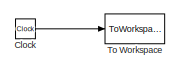
[diagram: root canvas - part 1/2, top left region]
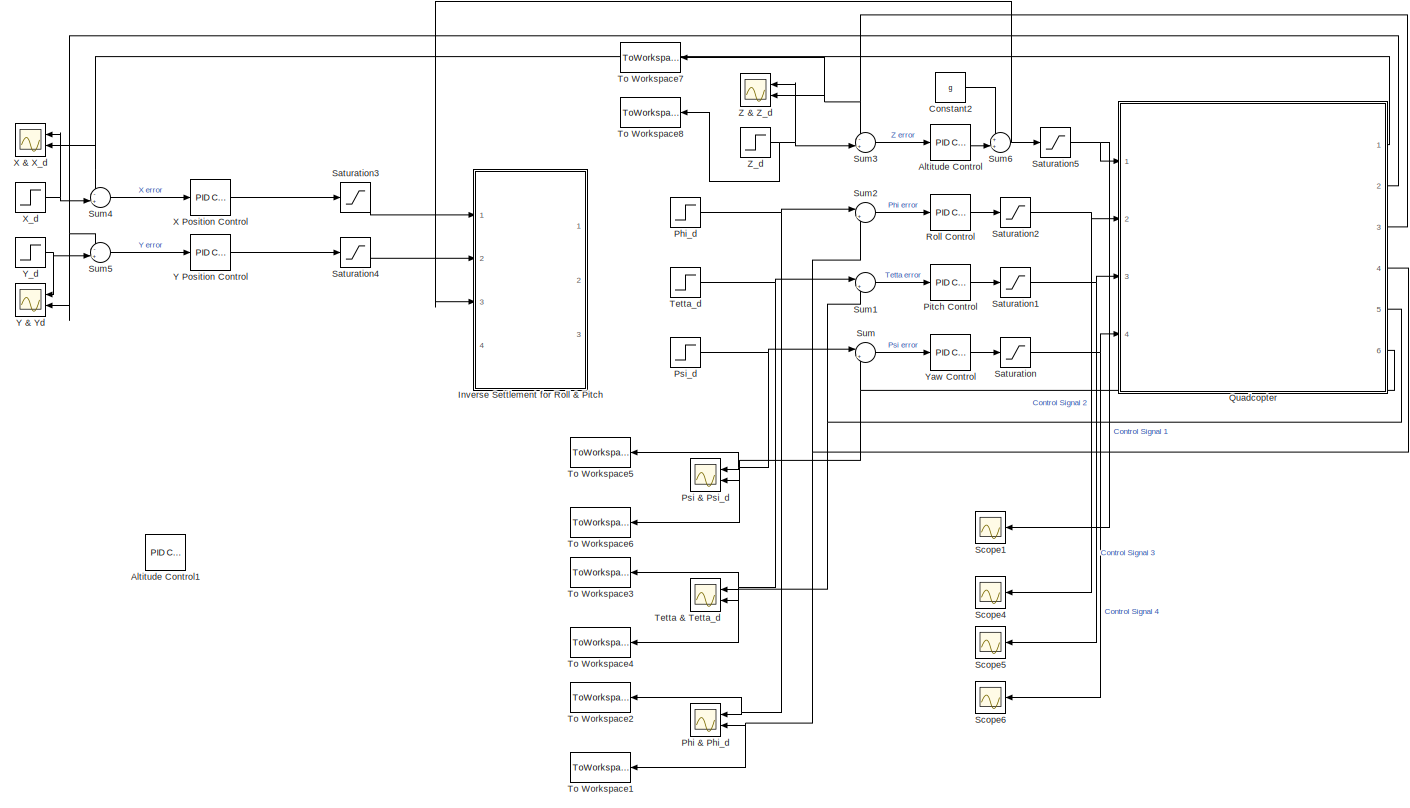
[diagram: root canvas - part 2/2, most of the canvas]
MODEL slx_0c0a3002c4bc
KIND model
CONFIG AbsTol = auto
CONFIG EnableMultiTasking = off
CONFIG FixedStep = auto
CONFIG MaxStep = auto
CONFIG MinStep = auto
CONFIG RelTol = 1e-3
CONFIG SampleTimeConstraint = Unconstrained
CONFIG Solver = ode15s
CONFIG SolverName = ode15s
CONFIG StartTime = 0.0
CONFIG StopTime = Final_Time
BLOCK [Reference] Altitude Control  REF=simulink/Continuous/PID Controller
  Ports = [1, 1]
  SourceBlock = simulink/Continuous/PID Controller
  SourceProductBaseCode = SL
  SourceProductName = Simulink
  SourceType = PID 1dof
BLOCK [Reference] Altitude Control1  REF=simulink/Continuous/PID Controller
  Ports = [1, 1]
  SourceBlock = simulink/Continuous/PID Controller
  SourceProductBaseCode = SL
  SourceProductName = Simulink
  SourceType = PID 1dof
BLOCK [Clock] Clock
BLOCK [Constant] Constant2
  Value = g
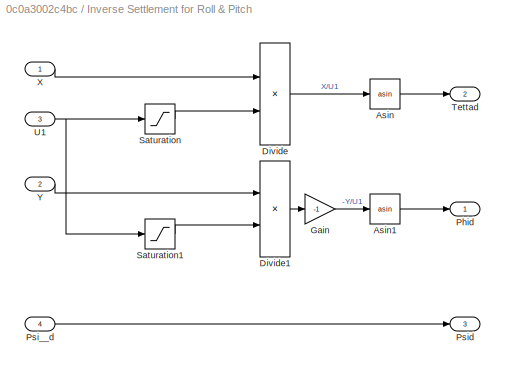
BLOCK [SubSystem] Inverse Settlement for Roll & Pitch
  Ports = [4, 3]
  RequestExecContextInheritance = off
BLOCK [Trigonometry] Inverse Settlement for Roll & Pitch/Asin
  Operator = asin
  Ports = [1, 1]
BLOCK [Trigonometry] Inverse Settlement for Roll & Pitch/Asin1
  Operator = asin
  Ports = [1, 1]
BLOCK [Product] Inverse Settlement for Roll & Pitch/Divide
  InputSameDT = off
  Inputs = */
  OutDataTypeStr = Inherit: Inherit via internal rule
  Ports = [2, 1]
  RndMeth = Floor
  SaturateOnIntegerOverflow = off
BLOCK [Product] Inverse Settlement for Roll & Pitch/Divide1
  InputSameDT = off
  Inputs = */
  OutDataTypeStr = Inherit: Inherit via internal rule
  Ports = [2, 1]
  RndMeth = Floor
  SaturateOnIntegerOverflow = off
BLOCK [Gain] Inverse Settlement for Roll & Pitch/Gain
  Gain = -1
  OutDataTypeStr = Inherit: Inherit via internal rule
  ParamDataTypeStr = Inherit: Inherit via internal rule
  SaturateOnIntegerOverflow = off
BLOCK [Outport] Inverse Settlement for Roll & Pitch/Phid 
  IconDisplay = Port number
BLOCK [Inport] Inverse Settlement for Roll & Pitch/Psi__d
  IconDisplay = Port number
  Port = 4
BLOCK [Outport] Inverse Settlement for Roll & Pitch/Psid 
  IconDisplay = Port number
  Port = 3
BLOCK [Saturate] Inverse Settlement for Roll & Pitch/Saturation
  InputPortMap = u0
  LowerLimit = 0.01
  OutMax = [Zd]
  OutMin = [0.01]
  Ports = [1, 1]
  UpperLimit = Zd
BLOCK [Saturate] Inverse Settlement for Roll & Pitch/Saturation1
  InputPortMap = u0
  LowerLimit = 0.01
  OutMax = [Zd]
  OutMin = [0.01]
  Ports = [1, 1]
  UpperLimit = Zd
BLOCK [Outport] Inverse Settlement for Roll & Pitch/Tettad
  IconDisplay = Port number
  Port = 2
BLOCK [Inport] Inverse Settlement for Roll & Pitch/U1
  IconDisplay = Port number
  Port = 3
BLOCK [Inport] Inverse Settlement for Roll & Pitch/X
  IconDisplay = Port number
BLOCK [Inport] Inverse Settlement for Roll & Pitch/Y
  IconDisplay = Port number
  Port = 2
BLOCK [Scope] Phi & Phi_d 
  Floating = off
  NumInputPorts = 2
  Ports = [2]
  ScopeSpecificationString = Simulink.scopes.TimeScopeBlockCfg('CurrentConfiguration', extmgr.ConfigurationSet(extmgr.Configuration('Core','General UI',true),extmgr.Configuration('Core','Source UI',true),extmgr.Configuration('Sources','WiredSimulink',true,'DataLoggingVariableName','ScopeData2'),extmgr.Configuration('Visuals','Time Domain',true,'SerializedDisplays',{struct('MinYLimReal','-2.60535','MaxYLimReal','23.44811','YLa...<+1482ch>
BLOCK [Step] Phi_d
  After = Phi_d
  SampleTime = 0
BLOCK [Reference] Pitch Control  REF=simulink/Continuous/PID Controller
  Ports = [1, 1]
  SourceBlock = simulink/Continuous/PID Controller
  SourceProductBaseCode = SL
  SourceProductName = Simulink
  SourceType = PID 1dof
BLOCK [Scope] Psi & Psi_d
  Floating = off
  NumInputPorts = 2
  Ports = [2]
  ScopeSpecificationString = Simulink.scopes.TimeScopeBlockCfg('CurrentConfiguration', extmgr.ConfigurationSet(extmgr.Configuration('Core','General UI',true),extmgr.Configuration('Core','Source UI',true),extmgr.Configuration('Sources','WiredSimulink',true),extmgr.Configuration('Visuals','Time Domain',true,'SerializedDisplays',{struct('MinYLimReal','-1.25','MaxYLimReal','11.25','YLabelReal','','MinYLimMag','0.00000','MaxYLimMa...<+1425ch>
BLOCK [Step] Psi_d
  After = Psi_d
  SampleTime = 0
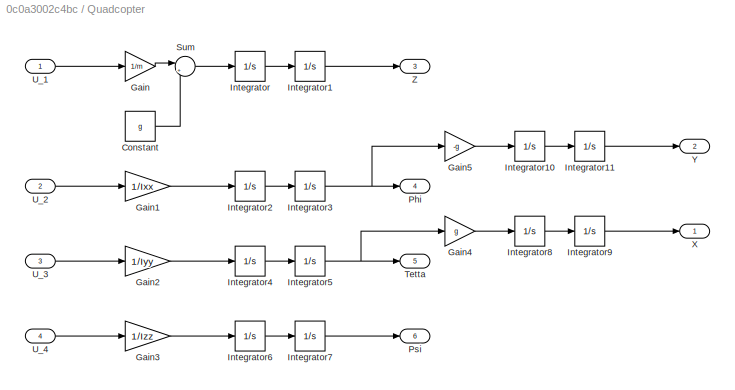
BLOCK [SubSystem] Quadcopter
  Ports = [4, 6]
  RequestExecContextInheritance = off
BLOCK [Constant] Quadcopter/Constant
  Value = g
BLOCK [Gain] Quadcopter/Gain
  Gain = 1/m
  OutDataTypeStr = Inherit: Inherit via internal rule
  ParamDataTypeStr = Inherit: Inherit via internal rule
  SaturateOnIntegerOverflow = off
BLOCK [Gain] Quadcopter/Gain1
  Gain = 1/Ixx
  OutDataTypeStr = Inherit: Inherit via internal rule
  ParamDataTypeStr = Inherit: Inherit via internal rule
  SaturateOnIntegerOverflow = off
BLOCK [Gain] Quadcopter/Gain2
  Gain = 1/Iyy
  OutDataTypeStr = Inherit: Inherit via internal rule
  ParamDataTypeStr = Inherit: Inherit via internal rule
  SaturateOnIntegerOverflow = off
BLOCK [Gain] Quadcopter/Gain3
  Gain = 1/Izz
  OutDataTypeStr = Inherit: Inherit via internal rule
  ParamDataTypeStr = Inherit: Inherit via internal rule
  SaturateOnIntegerOverflow = off
BLOCK [Gain] Quadcopter/Gain4
  Gain = g
  OutDataTypeStr = Inherit: Inherit via internal rule
  ParamDataTypeStr = Inherit: Inherit via internal rule
  SaturateOnIntegerOverflow = off
BLOCK [Gain] Quadcopter/Gain5
  Gain = -g
  OutDataTypeStr = Inherit: Inherit via internal rule
  ParamDataTypeStr = Inherit: Inherit via internal rule
  SaturateOnIntegerOverflow = off
BLOCK [Integrator] Quadcopter/Integrator
  Ports = [1, 1]
BLOCK [Integrator] Quadcopter/Integrator1
  Ports = [1, 1]
BLOCK [Integrator] Quadcopter/Integrator10
  Ports = [1, 1]
BLOCK [Integrator] Quadcopter/Integrator11
  Ports = [1, 1]
BLOCK [Integrator] Quadcopter/Integrator2
  Ports = [1, 1]
BLOCK [Integrator] Quadcopter/Integrator3
  Ports = [1, 1]
BLOCK [Integrator] Quadcopter/Integrator4
  Ports = [1, 1]
BLOCK [Integrator] Quadcopter/Integrator5
  Ports = [1, 1]
BLOCK [Integrator] Quadcopter/Integrator6
  Ports = [1, 1]
BLOCK [Integrator] Quadcopter/Integrator7
  Ports = [1, 1]
BLOCK [Integrator] Quadcopter/Integrator8
  Ports = [1, 1]
BLOCK [Integrator] Quadcopter/Integrator9
  Ports = [1, 1]
BLOCK [Outport] Quadcopter/Phi
  IconDisplay = Port number
  Port = 4
BLOCK [Outport] Quadcopter/Psi
  IconDisplay = Port number
  Port = 6
BLOCK [Sum] Quadcopter/Sum
  IconShape = round
  InputSameDT = off
  Inputs = |+-
  OutDataTypeStr = Inherit: Inherit via internal rule
  Ports = [2, 1]
  SaturateOnIntegerOverflow = off
BLOCK [Outport] Quadcopter/Tetta
  IconDisplay = Port number
  Port = 5
BLOCK [Inport] Quadcopter/U_1
  IconDisplay = Port number
BLOCK [Inport] Quadcopter/U_2
  IconDisplay = Port number
  Port = 2
BLOCK [Inport] Quadcopter/U_3
  IconDisplay = Port number
  Port = 3
BLOCK [Inport] Quadcopter/U_4
  IconDisplay = Port number
  Port = 4
BLOCK [Outport] Quadcopter/X
  IconDisplay = Port number
BLOCK [Outport] Quadcopter/Y
  IconDisplay = Port number
  Port = 2
BLOCK [Outport] Quadcopter/Z
  IconDisplay = Port number
  Port = 3
BLOCK [Reference] Roll Control  REF=simulink/Continuous/PID Controller
  Ports = [1, 1]
  SourceBlock = simulink/Continuous/PID Controller
  SourceProductBaseCode = SL
  SourceProductName = Simulink
  SourceType = PID 1dof
BLOCK [Saturate] Saturation
  InputPortMap = u0
  LowerLimit = u4_min
  Ports = [1, 1]
  UpperLimit = u4_max
BLOCK [Saturate] Saturation1
  InputPortMap = u0
  LowerLimit = u3_min
  Ports = [1, 1]
  UpperLimit = u3_max
BLOCK [Saturate] Saturation2
  InputPortMap = u0
  LowerLimit = u2_min
  Ports = [1, 1]
  UpperLimit = u2_max
BLOCK [Saturate] Saturation3
  InputPortMap = u0
  LowerLimit = -3*g
  Ports = [1, 1]
  UpperLimit = 3*g
BLOCK [Saturate] Saturation4
  InputPortMap = u0
  LowerLimit = -3*g
  Ports = [1, 1]
  UpperLimit = 3*g
BLOCK [Saturate] Saturation5
  InputPortMap = u0
  LowerLimit = u1_min
  Ports = [1, 1]
  UpperLimit = u1_max
BLOCK [Scope] Scope1
  Floating = off
  NumInputPorts = 1
  Ports = [1]
  ScopeSpecificationString = Simulink.scopes.TimeScopeBlockCfg('CurrentConfiguration', extmgr.ConfigurationSet(extmgr.Configuration('Core','General UI',true),extmgr.Configuration('Core','Source UI',true),extmgr.Configuration('Sources','WiredSimulink',true,'DataLoggingVariableName','ScopeData1'),extmgr.Configuration('Visuals','Time Domain',true,'SerializedDisplays',{struct('MinYLimReal','94.504','MaxYLimReal','107.87649','YLab...<+1449ch>
BLOCK [Scope] Scope4
  Floating = off
  NumInputPorts = 1
  Ports = [1]
  ScopeSpecificationString = Simulink.scopes.TimeScopeBlockCfg('CurrentConfiguration', extmgr.ConfigurationSet(extmgr.Configuration('Core','General UI',true),extmgr.Configuration('Core','Source UI',true),extmgr.Configuration('Sources','WiredSimulink',true,'DataLoggingVariableName','ScopeData1'),extmgr.Configuration('Visuals','Time Domain',true,'SerializedDisplays',{struct('MinYLimReal','-27.38258','MaxYLimReal','27.38258','YL...<+1453ch>
BLOCK [Scope] Scope5
  Floating = off
  NumInputPorts = 1
  Ports = [1]
  ScopeSpecificationString = Simulink.scopes.TimeScopeBlockCfg('CurrentConfiguration', extmgr.ConfigurationSet(extmgr.Configuration('Core','General UI',true),extmgr.Configuration('Core','Source UI',true),extmgr.Configuration('Sources','WiredSimulink',true,'DataLoggingVariableName','ScopeData2'),extmgr.Configuration('Visuals','Time Domain',true,'SerializedDisplays',{struct('MinYLimReal','-27.38258','MaxYLimReal','27.38258','YL...<+1382ch>
BLOCK [Scope] Scope6
  Floating = off
  NumInputPorts = 1
  Ports = [1]
  ScopeSpecificationString = Simulink.scopes.TimeScopeBlockCfg('CurrentConfiguration', extmgr.ConfigurationSet(extmgr.Configuration('Core','General UI',true),extmgr.Configuration('Core','Source UI',true),extmgr.Configuration('Sources','WiredSimulink',true,'DataLoggingVariableName','ScopeData3'),extmgr.Configuration('Visuals','Time Domain',true,'SerializedDisplays',{struct('MinYLimReal','-3.82952','MaxYLimReal','3.82952','YLab...<+1376ch>
BLOCK [Sum] Sum
  IconShape = round
  InputSameDT = off
  Inputs = |+-
  OutDataTypeStr = Inherit: Inherit via internal rule
  Ports = [2, 1]
  SaturateOnIntegerOverflow = off
BLOCK [Sum] Sum1
  IconShape = round
  InputSameDT = off
  Inputs = |+-
  OutDataTypeStr = Inherit: Inherit via internal rule
  Ports = [2, 1]
  SaturateOnIntegerOverflow = off
BLOCK [Sum] Sum2
  IconShape = round
  InputSameDT = off
  Inputs = |+-
  OutDataTypeStr = Inherit: Inherit via internal rule
  Ports = [2, 1]
  SaturateOnIntegerOverflow = off
BLOCK [Sum] Sum3
  IconShape = round
  InputSameDT = off
  Inputs = -+|
  OutDataTypeStr = Inherit: Inherit via internal rule
  Ports = [2, 1]
  SaturateOnIntegerOverflow = off
BLOCK [Sum] Sum4
  IconShape = round
  InputSameDT = off
  Inputs = -+|
  OutDataTypeStr = Inherit: Inherit via internal rule
  Ports = [2, 1]
  SaturateOnIntegerOverflow = off
BLOCK [Sum] Sum5
  IconShape = round
  InputSameDT = off
  Inputs = -+|
  OutDataTypeStr = Inherit: Inherit via internal rule
  Ports = [2, 1]
  SaturateOnIntegerOverflow = off
BLOCK [Sum] Sum6
  IconShape = round
  InputSameDT = off
  Inputs = ++|
  OutDataTypeStr = Inherit: Inherit via internal rule
  Ports = [2, 1]
  SaturateOnIntegerOverflow = off
BLOCK [Scope] Tetta & Tetta_d 
  Floating = off
  NumInputPorts = 2
  Ports = [2]
  ScopeSpecificationString = Simulink.scopes.TimeScopeBlockCfg('CurrentConfiguration', extmgr.ConfigurationSet(extmgr.Configuration('Core','General UI',true),extmgr.Configuration('Core','Source UI',true),extmgr.Configuration('Sources','WiredSimulink',true,'DataLoggingVariableName','ScopeData1'),extmgr.Configuration('Visuals','Time Domain',true,'SerializedDisplays',{struct('MinYLimReal','-3.75372','MaxYLimReal','33.78344','YLa...<+1484ch>
BLOCK [Step] Tetta_d
  After = Tetta_d
  SampleTime = 0
BLOCK [ToWorkspace] To Workspace
  FixptAsFi = on
  MaxDataPoints = inf
  Ports = [1]
  SampleTime = -1
  Save2DSignal = 2-D array (concatenate along first dimension)
  VariableName = t
BLOCK [ToWorkspace] To Workspace1
  FixptAsFi = on
  MaxDataPoints = inf
  Ports = [1]
  SampleTime = -1
  Save2DSignal = 2-D array (concatenate along first dimension)
  VariableName = phi
BLOCK [ToWorkspace] To Workspace2
  FixptAsFi = on
  MaxDataPoints = inf
  Ports = [1]
  SampleTime = -1
  Save2DSignal = 2-D array (concatenate along first dimension)
  VariableName = phi_ref
BLOCK [ToWorkspace] To Workspace3
  FixptAsFi = on
  MaxDataPoints = inf
  Ports = [1]
  SampleTime = -1
  Save2DSignal = 2-D array (concatenate along first dimension)
  VariableName = tetta_ref
BLOCK [ToWorkspace] To Workspace4
  FixptAsFi = on
  MaxDataPoints = inf
  Ports = [1]
  SampleTime = -1
  Save2DSignal = 2-D array (concatenate along first dimension)
  VariableName = tetta
BLOCK [ToWorkspace] To Workspace5
  FixptAsFi = on
  MaxDataPoints = inf
  Ports = [1]
  SampleTime = -1
  Save2DSignal = 2-D array (concatenate along first dimension)
  VariableName = psi_ref
BLOCK [ToWorkspace] To Workspace6
  FixptAsFi = on
  MaxDataPoints = inf
  Ports = [1]
  SampleTime = -1
  Save2DSignal = 2-D array (concatenate along first dimension)
  VariableName = psi
BLOCK [ToWorkspace] To Workspace7
  FixptAsFi = on
  MaxDataPoints = inf
  Ports = [1]
  SampleTime = -1
  Save2DSignal = 2-D array (concatenate along first dimension)
  VariableName = Z
BLOCK [ToWorkspace] To Workspace8
  FixptAsFi = on
  MaxDataPoints = inf
  Ports = [1]
  SampleTime = -1
  Save2DSignal = 2-D array (concatenate along first dimension)
  VariableName = Z_ref
BLOCK [Scope] X & X_d
  Floating = off
  NumInputPorts = 2
  Ports = [2]
  ScopeSpecificationString = Simulink.scopes.TimeScopeBlockCfg('CurrentConfiguration', extmgr.ConfigurationSet(extmgr.Configuration('Core','General UI',true),extmgr.Configuration('Core','Source UI',true),extmgr.Configuration('Sources','WiredSimulink',true,'DataLoggingVariableName','ScopeData1'),extmgr.Configuration('Visuals','Time Domain',true,'SerializedDisplays',{struct('MinYLimReal','-0.14068','MaxYLimReal','1.26613','YLab...<+1477ch>
BLOCK [Reference] X Position Control  REF=simulink/Continuous/PID Controller
  Ports = [1, 1]
  SourceBlock = simulink/Continuous/PID Controller
  SourceProductBaseCode = SL
  SourceProductName = Simulink
  SourceType = PID 1dof
BLOCK [Step] X_d
  After = Xd
  SampleTime = 0
BLOCK [Scope] Y & Yd
  Floating = off
  NumInputPorts = 2
  Ports = [2]
  ScopeSpecificationString = Simulink.scopes.TimeScopeBlockCfg('CurrentConfiguration', extmgr.ConfigurationSet(extmgr.Configuration('Core','General UI',true),extmgr.Configuration('Core','Source UI',true),extmgr.Configuration('Sources','WiredSimulink',true,'DataLoggingVariableName','ScopeData2'),extmgr.Configuration('Visuals','Time Domain',true,'SerializedDisplays',{struct('MinYLimReal','-0.14222','MaxYLimReal','1.27996','YLab...<+1478ch>
BLOCK [Reference] Y Position Control  REF=simulink/Continuous/PID Controller
  Ports = [1, 1]
  SourceBlock = simulink/Continuous/PID Controller
  SourceProductBaseCode = SL
  SourceProductName = Simulink
  SourceType = PID 1dof
BLOCK [Step] Y_d 
  After = Yd
  SampleTime = 0
BLOCK [Reference] Yaw Control  REF=simulink/Continuous/PID Controller
  Ports = [1, 1]
  SourceBlock = simulink/Continuous/PID Controller
  SourceProductBaseCode = SL
  SourceProductName = Simulink
  SourceType = PID 1dof
BLOCK [Scope] Z & Z_d
  Floating = off
  NumInputPorts = 2
  Ports = [2]
  ScopeSpecificationString = Simulink.scopes.TimeScopeBlockCfg('CurrentConfiguration', extmgr.ConfigurationSet(extmgr.Configuration('Core','General UI',true),extmgr.Configuration('Core','Source UI',true),extmgr.Configuration('Sources','WiredSimulink',true,'DataLoggingVariableName','ScopeData3'),extmgr.Configuration('Visuals','Time Domain',true,'SerializedDisplays',{struct('MinYLimReal','-0.625','MaxYLimReal','5.625','YLabelRe...<+1464ch>
BLOCK [Step] Z_d
  After = Zd
  SampleTime = 0
  Time = 0
LINE Altitude Control:1 -> Sum6:2
LINE Clock:1 -> To Workspace:1
LINE Constant2:1 -> Sum6:1
LINE Inverse Settlement for Roll & Pitch/Asin1:1 -> Inverse Settlement for Roll & Pitch/Phid :1
LINE Inverse Settlement for Roll & Pitch/Asin:1 -> Inverse Settlement for Roll & Pitch/Tettad:1
LINE Inverse Settlement for Roll & Pitch/Divide1:1 -> Inverse Settlement for Roll & Pitch/Gain:1
LINE Inverse Settlement for Roll & Pitch/Divide:1 -> Inverse Settlement for Roll & Pitch/Asin:1
LINE Inverse Settlement for Roll & Pitch/Gain:1 -> Inverse Settlement for Roll & Pitch/Asin1:1
LINE Inverse Settlement for Roll & Pitch/Psi__d:1 -> Inverse Settlement for Roll & Pitch/Psid :1
LINE Inverse Settlement for Roll & Pitch/Saturation1:1 -> Inverse Settlement for Roll & Pitch/Divide1:2
LINE Inverse Settlement for Roll & Pitch/Saturation:1 -> Inverse Settlement for Roll & Pitch/Divide:2
NET Inverse Settlement for Roll & Pitch/U1:1 -> Inverse Settlement for Roll & Pitch/Saturation1:1, Inverse Settlement for Roll & Pitch/Saturation:1
LINE Inverse Settlement for Roll & Pitch/X:1 -> Inverse Settlement for Roll & Pitch/Divide:1
LINE Inverse Settlement for Roll & Pitch/Y:1 -> Inverse Settlement for Roll & Pitch/Divide1:1
NET Phi_d:1 -> Phi & Phi_d :1, Sum2:1, To Workspace2:1
LINE Pitch Control:1 -> Saturation1:1
NET Psi_d:1 -> Psi & Psi_d:1, Sum:1, To Workspace5:1
LINE Quadcopter/Constant:1 -> Quadcopter/Sum:2
LINE Quadcopter/Gain1:1 -> Quadcopter/Integrator2:1
LINE Quadcopter/Gain2:1 -> Quadcopter/Integrator4:1
LINE Quadcopter/Gain3:1 -> Quadcopter/Integrator6:1
LINE Quadcopter/Gain4:1 -> Quadcopter/Integrator8:1
LINE Quadcopter/Gain5:1 -> Quadcopter/Integrator10:1
LINE Quadcopter/Gain:1 -> Quadcopter/Sum:1
LINE Quadcopter/Integrator10:1 -> Quadcopter/Integrator11:1
LINE Quadcopter/Integrator11:1 -> Quadcopter/Y:1
LINE Quadcopter/Integrator1:1 -> Quadcopter/Z:1
LINE Quadcopter/Integrator2:1 -> Quadcopter/Integrator3:1
NET Quadcopter/Integrator3:1 -> Quadcopter/Gain5:1, Quadcopter/Phi:1
LINE Quadcopter/Integrator4:1 -> Quadcopter/Integrator5:1
NET Quadcopter/Integrator5:1 -> Quadcopter/Gain4:1, Quadcopter/Tetta:1
LINE Quadcopter/Integrator6:1 -> Quadcopter/Integrator7:1
LINE Quadcopter/Integrator7:1 -> Quadcopter/Psi:1
LINE Quadcopter/Integrator8:1 -> Quadcopter/Integrator9:1
LINE Quadcopter/Integrator9:1 -> Quadcopter/X:1
LINE Quadcopter/Integrator:1 -> Quadcopter/Integrator1:1
LINE Quadcopter/Sum:1 -> Quadcopter/Integrator:1
LINE Quadcopter/U_1:1 -> Quadcopter/Gain:1
LINE Quadcopter/U_2:1 -> Quadcopter/Gain1:1
LINE Quadcopter/U_3:1 -> Quadcopter/Gain2:1
LINE Quadcopter/U_4:1 -> Quadcopter/Gain3:1
NET Quadcopter:1 -> Sum4:1, X & X_d:2
NET Quadcopter:2 -> Sum5:1, Y & Yd:2
NET Quadcopter:3 -> Sum3:1, To Workspace7:1, Z & Z_d:2
NET Quadcopter:4 -> Phi & Phi_d :2, Sum2:2, To Workspace1:1
NET Quadcopter:5 -> Sum1:2, Tetta & Tetta_d :2, To Workspace4:1
NET Quadcopter:6 -> Psi & Psi_d:2, Sum:2, To Workspace6:1
LINE Roll Control:1 -> Saturation2:1
NET Saturation1:1 -> Quadcopter:3, Scope5:1
NET Saturation2:1 -> Quadcopter:2, Scope4:1
LINE Saturation3:1 -> Inverse Settlement for Roll & Pitch:1
LINE Saturation4:1 -> Inverse Settlement for Roll & Pitch:2
NET Saturation5:1 -> Quadcopter:1, Scope1:1
NET Saturation:1 -> Quadcopter:4, Scope6:1
LINE Sum1:1 -> Pitch Control:1
LINE Sum2:1 -> Roll Control:1
LINE Sum3:1 -> Altitude Control:1
LINE Sum4:1 -> X Position Control:1
LINE Sum5:1 -> Y Position Control:1
NET Sum6:1 -> Inverse Settlement for Roll & Pitch:3, Saturation5:1
LINE Sum:1 -> Yaw Control:1
NET Tetta_d:1 -> Sum1:1, Tetta & Tetta_d :1, To Workspace3:1
LINE X Position Control:1 -> Saturation3:1
NET X_d:1 -> Sum4:2, X & X_d:1
LINE Y Position Control:1 -> Saturation4:1
NET Y_d :1 -> Sum5:2, Y & Yd:1
LINE Yaw Control:1 -> Saturation:1
NET Z_d:1 -> Sum3:2, To Workspace8:1, Z & Z_d:1
note: NET lines group one-source signal fan-out (src -> all destinations, sorted); 1:1 wires keep LINE
